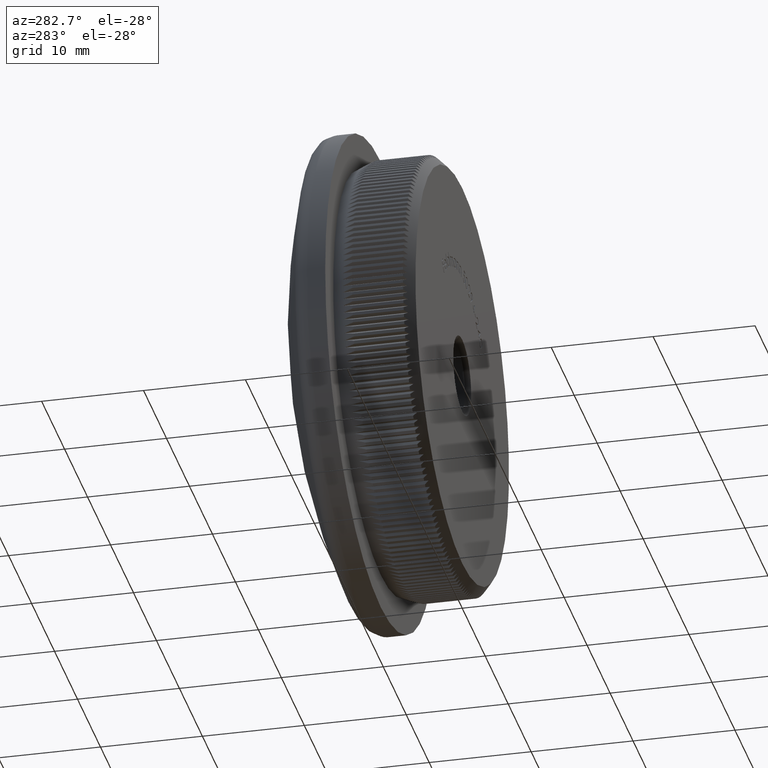
[diagram: clean part render]
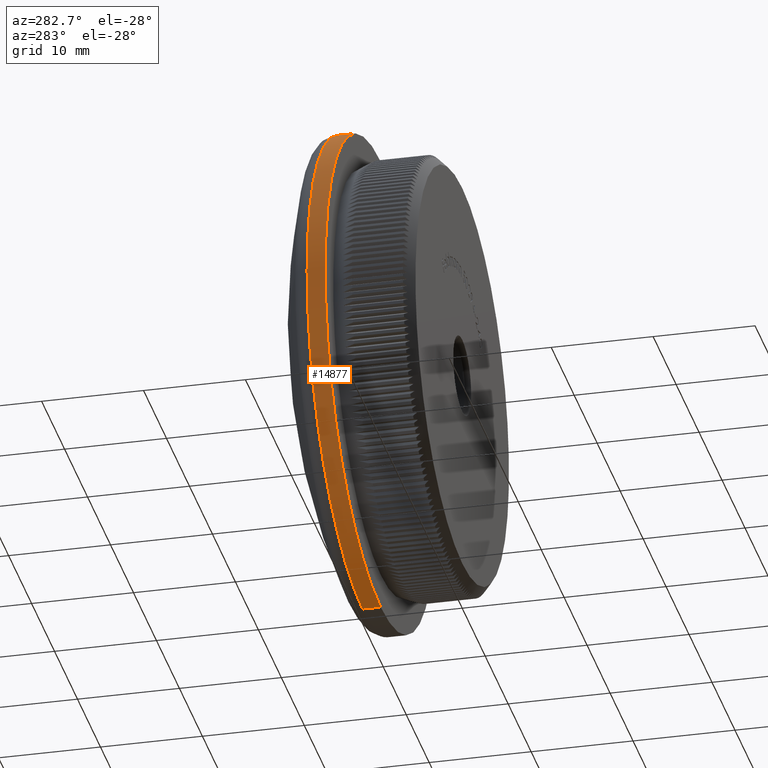
[diagram: same view with one face highlighted and labeled with its STEP entity id]
A machine part, auxiliary view. The second image highlights one B-rep face of the part: STEP entity #14877.
In plain terms, the highlighted cylindrical surface (partial cylindrical patch) has radius 24.15 mm, axis along (-0, -1, -0).
Its self-contained STEP definition (entity closure, byte-faithful):
#192 = AXIS2_PLACEMENT_3D ( 'NONE', #21870, #11568, #11778 ) ;
#217 = LINE ( 'NONE', #28184, #2584 ) ;
#343 = AXIS2_PLACEMENT_3D ( 'NONE', #23248, #25809, #10519 ) ;
#2584 = VECTOR ( 'NONE', #15718, 1000.000000000000000 ) ;
#3523 = ORIENTED_EDGE ( 'NONE', *, *, #24803, .F. ) ;
#6352 = EDGE_CURVE ( 'NONE', #7052, #21784, #21898, .T. ) ;
#7052 = VERTEX_POINT ( 'NONE', #20575 ) ;
#7126 = CIRCLE ( 'NONE', #343, 24.15000000000000200 ) ;
#7294 = CYLINDRICAL_SURFACE ( 'NONE', #192, 24.15000000000000200 ) ;
#8565 = DIRECTION ( 'NONE',  ( 0.0000000000000000000, 0.0000000000000000000, -1.000000000000000000 ) ) ;
#10219 = AXIS2_PLACEMENT_3D ( 'NONE', #18678, #23762, #8565 ) ;
#10519 = DIRECTION ( 'NONE',  ( 0.0000000000000000000, 0.0000000000000000000, -1.000000000000000000 ) ) ;
#11568 = DIRECTION ( 'NONE',  ( -0.0000000000000000000, -1.000000000000000000, -0.0000000000000000000 ) ) ;
#11778 = DIRECTION ( 'NONE',  ( 0.0000000000000000000, 0.0000000000000000000, -1.000000000000000000 ) ) ;
#14290 = EDGE_CURVE ( 'NONE', #14712, #26831, #217, .T. ) ;
#14712 = VERTEX_POINT ( 'NONE', #30157 ) ;
#14877 = ADVANCED_FACE ( 'NONE', ( #15211 ), #7294, .T. ) ;
#15211 = FACE_OUTER_BOUND ( 'NONE', #30766, .T. ) ;
#15239 = ORIENTED_EDGE ( 'NONE', *, *, #18218, .T. ) ;
#15718 = DIRECTION ( 'NONE',  ( -0.0000000000000000000, -1.000000000000000000, -0.0000000000000000000 ) ) ;
#17796 = ORIENTED_EDGE ( 'NONE', *, *, #14290, .F. ) ;
#18218 = EDGE_CURVE ( 'NONE', #14712, #7052, #7126, .T. ) ;
#18367 = CARTESIAN_POINT ( 'NONE',  ( 0.0000000000000000000, 0.0000000000000000000, -24.15000000000000200 ) ) ;
#18678 = CARTESIAN_POINT ( 'NONE',  ( 0.0000000000000000000, 8.000000000000000000, 0.0000000000000000000 ) ) ;
#20025 = CIRCLE ( 'NONE', #10219, 24.14999999999999900 ) ;
#20575 = CARTESIAN_POINT ( 'NONE',  ( 0.0000000000000000000, 9.780020886796899400, -24.15000000000000200 ) ) ;
#20910 = DIRECTION ( 'NONE',  ( -0.0000000000000000000, -1.000000000000000000, -0.0000000000000000000 ) ) ;
#21784 = VERTEX_POINT ( 'NONE', #23437 ) ;
#21870 = CARTESIAN_POINT ( 'NONE',  ( 0.0000000000000000000, 0.0000000000000000000, 0.0000000000000000000 ) ) ;
#21898 = LINE ( 'NONE', #18367, #28610 ) ;
#23248 = CARTESIAN_POINT ( 'NONE',  ( 0.0000000000000000000, 9.780020886796899400, 0.0000000000000000000 ) ) ;
#23437 = CARTESIAN_POINT ( 'NONE',  ( 0.0000000000000000000, 8.000000000000000000, -24.14999999999999900 ) ) ;
#23762 = DIRECTION ( 'NONE',  ( -0.0000000000000000000, -1.000000000000000000, -0.0000000000000000000 ) ) ;
#24502 = CARTESIAN_POINT ( 'NONE',  ( 2.957522019940858300E-015, 8.000000000000000000, 24.14999999999999900 ) ) ;
#24803 = EDGE_CURVE ( 'NONE', #26831, #21784, #20025, .T. ) ;
#25729 = ORIENTED_EDGE ( 'NONE', *, *, #6352, .T. ) ;
#25809 = DIRECTION ( 'NONE',  ( -0.0000000000000000000, -1.000000000000000000, -0.0000000000000000000 ) ) ;
#26831 = VERTEX_POINT ( 'NONE', #24502 ) ;
#28184 = CARTESIAN_POINT ( 'NONE',  ( 2.957522019940858300E-015, 0.0000000000000000000, 24.15000000000000200 ) ) ;
#28610 = VECTOR ( 'NONE', #20910, 1000.000000000000000 ) ;
#30157 = CARTESIAN_POINT ( 'NONE',  ( 2.957522019940858300E-015, 9.780020886796899400, 24.15000000000000200 ) ) ;
#30766 = EDGE_LOOP ( 'NONE', ( #17796, #15239, #25729, #3523 ) ) ;